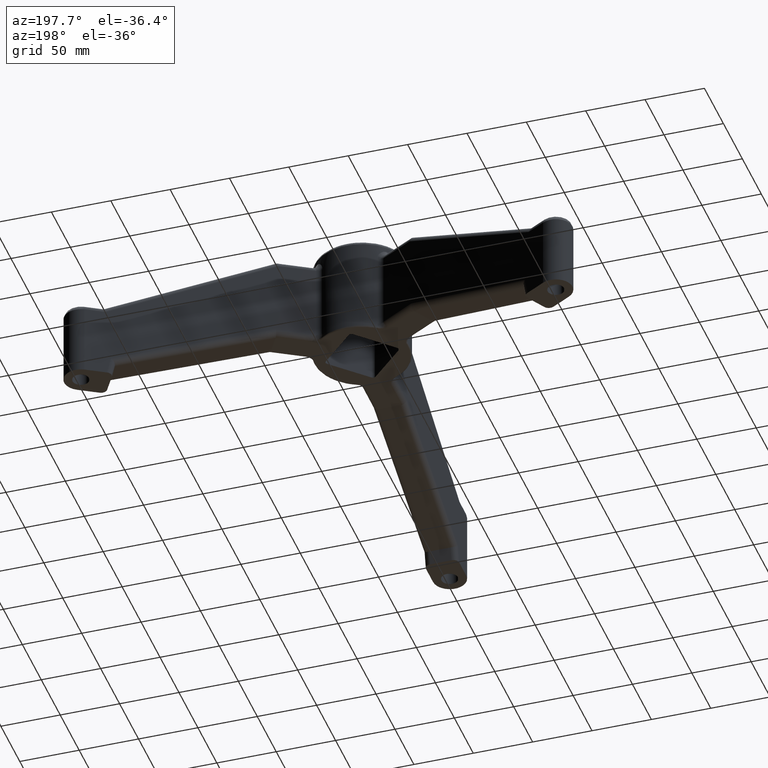
[diagram: clean part render]
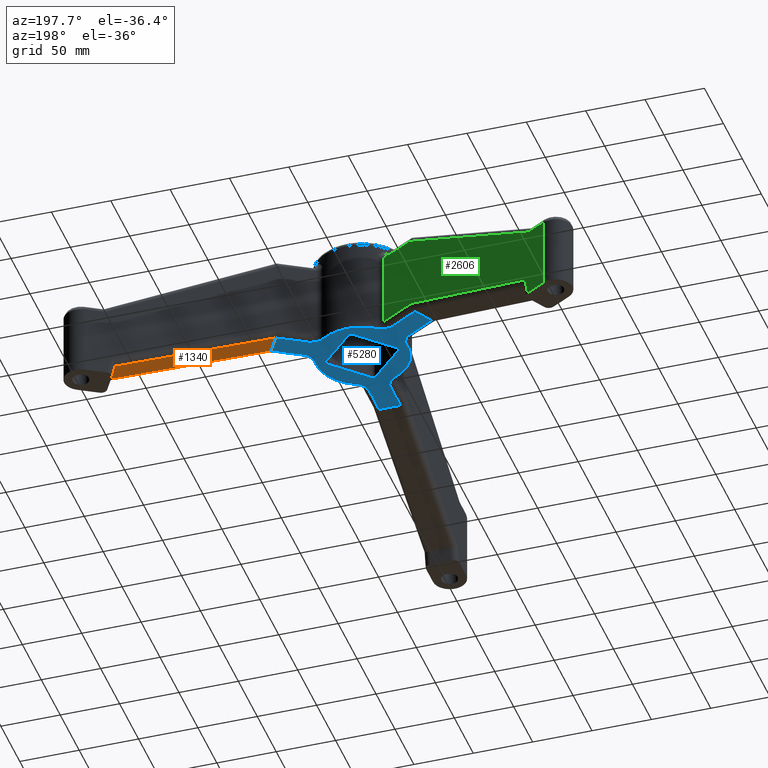
[diagram: same view with three faces highlighted in distinct colors, each labeled with its STEP entity id]
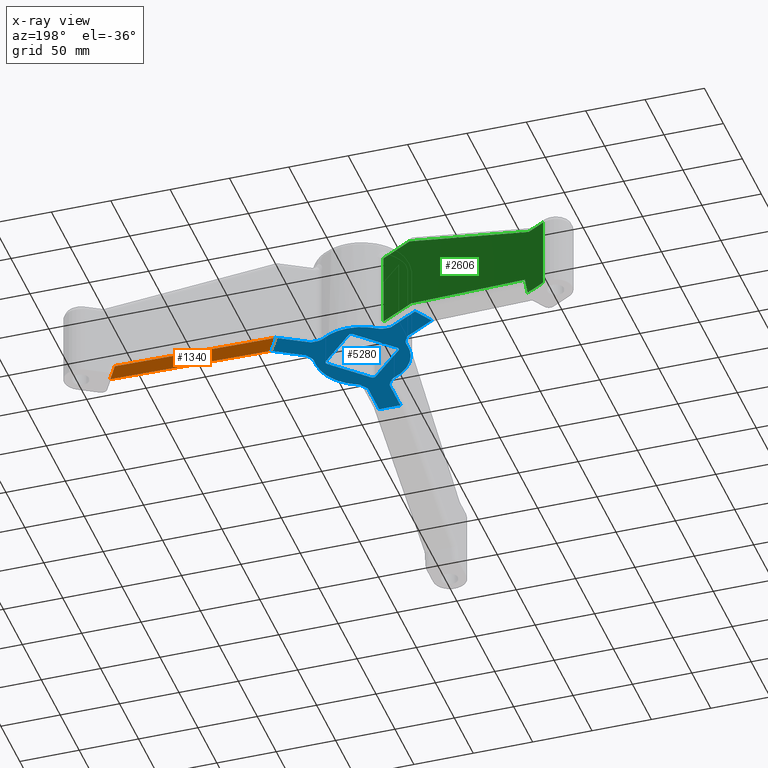
[diagram: x-ray of the same camera — body ghosted, the three highlighted faces saturated]
A machine part, auxiliary view with three faces highlighted in distinct colors.
The next image is the same camera in x-ray (body ghosted, the three faces saturated) — at least one of them is partly hidden behind the body in this view.
Their STEP definitions:

[orange] entity #1340 — the highlighted planar face has unit normal (0.3014, 0.174, 0.9375).
#1107=CARTESIAN_POINT('',(173.032346587699350,110.299184325006410,-134.0));
#1108=VERTEX_POINT('',#1107);
#1109=CARTESIAN_POINT('',(58.716993406259007,44.299184120441559,-85.0));
#1110=VERTEX_POINT('',#1109);
#1111=CARTESIAN_POINT('',(173.032346587699350,110.299184325006410,-134.0));
#1112=DIRECTION('',(-0.811891443584872,-0.468745745443629,0.348008203871933));
#1113=VECTOR('',#1112,140.801278403287260);
#1114=LINE('',#1111,#1113);
#1115=EDGE_CURVE('',#1108,#1110,#1114,.T.);
#1191=CARTESIAN_POINT('',(182.038069255027010,94.700815170782377,-134.0));
#1192=VERTEX_POINT('',#1191);
#1193=CARTESIAN_POINT('',(67.722716073586682,28.700814966217532,-85.0));
#1194=VERTEX_POINT('',#1193);
#1195=CARTESIAN_POINT('',(182.038069255027010,94.700815170782377,-134.0));
#1196=DIRECTION('',(-0.811891443584872,-0.468745745443629,0.348008203871933));
#1197=VECTOR('',#1196,140.801278403287260);
#1198=LINE('',#1195,#1197);
#1199=EDGE_CURVE('',#1192,#1194,#1198,.T.);
#1319=CARTESIAN_POINT('',(9.279279657066688,393.927814971958700,-134.000000000000030));
#1320=DIRECTION('',(0.301383944967112,0.174004102475287,0.937491487981534));
#1321=DIRECTION('',(-0.811891443584872,-0.468745745443630,0.348008203871933));
#1322=AXIS2_PLACEMENT_3D('',#1319,#1320,#1321);
#1323=PLANE('',#1322);
#1324=CARTESIAN_POINT('',(58.716993406259022,44.299184120441566,-85.0));
#1325=DIRECTION('',(0.500000001549735,-0.866025402889699,0.0));
#1326=VECTOR('',#1325,18.011445278829445);
#1327=LINE('',#1324,#1326);
#1328=EDGE_CURVE('',#1110,#1194,#1327,.T.);
#1329=ORIENTED_EDGE('',*,*,#1328,.F.);
#1330=ORIENTED_EDGE('',*,*,#1115,.F.);
#1331=CARTESIAN_POINT('',(173.032346587699350,110.299184325006420,-134.0));
#1332=DIRECTION('',(0.500000001549735,-0.866025402889699,0.0));
#1333=VECTOR('',#1332,18.011445278829445);
#1334=LINE('',#1331,#1333);
#1335=EDGE_CURVE('',#1108,#1192,#1334,.T.);
#1336=ORIENTED_EDGE('',*,*,#1335,.T.);
#1337=ORIENTED_EDGE('',*,*,#1199,.T.);
#1338=EDGE_LOOP('',(#1329,#1330,#1336,#1337));
#1339=FACE_OUTER_BOUND('',#1338,.T.);
#1340=ADVANCED_FACE('',(#1339),#1323,.F.);

[blue] entity #5280 — the highlighted planar face has unit normal (0, 0, 1).
#396=CARTESIAN_POINT('',(9.005722112097075,-72.999999983884464,-85.0));
#397=VERTEX_POINT('',#396);
#480=CARTESIAN_POINT('',(-9.005723166732363,-73.000000016115578,-85.0));
#481=VERTEX_POINT('',#480);
#611=CARTESIAN_POINT('',(9.005722112097146,-72.999999983884493,-85.0));
#612=DIRECTION('',(-1.0,-1.789478E-009,0.0));
#613=VECTOR('',#612,18.011445278829456);
#614=LINE('',#611,#613);
#615=EDGE_CURVE('',#397,#481,#614,.T.);
#1109=CARTESIAN_POINT('',(58.716993406259007,44.299184120441559,-85.0));
#1110=VERTEX_POINT('',#1109);
#1193=CARTESIAN_POINT('',(67.722716073586682,28.700814966217532,-85.0));
#1194=VERTEX_POINT('',#1193);
#1324=CARTESIAN_POINT('',(58.716993406259022,44.299184120441566,-85.0));
#1325=DIRECTION('',(0.500000001549735,-0.866025402889699,0.0));
#1326=VECTOR('',#1325,18.011445278829445);
#1327=LINE('',#1324,#1326);
#1328=EDGE_CURVE('',#1110,#1194,#1327,.T.);
#1435=CARTESIAN_POINT('',(30.052006248369899,1.767766657562847,-85.0));
#1436=VERTEX_POINT('',#1435);
#1443=CARTESIAN_POINT('',(30.052006248369903,-1.767767342437120,-85.0));
#1444=VERTEX_POINT('',#1443);
#1445=CARTESIAN_POINT('',(28.284239242490710,-0.000000342437135,-85.0));
#1446=DIRECTION('',(0.0,-6.123234E-017,-1.0));
#1447=DIRECTION('',(0.707106782362389,0.707106780010706,-4.329780E-017));
#1448=AXIS2_PLACEMENT_3D('',#1445,#1446,#1447);
#1449=CIRCLE('',#1448,2.500000070672806);
#1450=EDGE_CURVE('',#1436,#1444,#1449,.T.);
#1483=CARTESIAN_POINT('',(1.767767002939595,30.052005997060402,-85.0));
#1484=VERTEX_POINT('',#1483);
#1491=CARTESIAN_POINT('',(30.052006248369899,1.767766657562847,-85.0));
#1492=DIRECTION('',(-0.707106780010706,0.707106782362389,0.0));
#1493=VECTOR('',#1492,39.999954808808482);
#1494=LINE('',#1491,#1493);
#1495=EDGE_CURVE('',#1436,#1484,#1494,.T.);
#1515=CARTESIAN_POINT('',(-1.767766999999989,30.052006000000006,-85.0));
#1516=VERTEX_POINT('',#1515);
#1523=CARTESIAN_POINT('',(0.0,28.284239000000017,-85.0));
#1524=DIRECTION('',(0.0,-6.123234E-017,-1.0));
#1525=DIRECTION('',(0.707106782362390,0.707106780010705,-4.329780E-017));
#1526=AXIS2_PLACEMENT_3D('',#1523,#1524,#1525);
#1527=CIRCLE('',#1526,2.500000066515584);
#1528=EDGE_CURVE('',#1516,#1484,#1527,.T.);
#1547=CARTESIAN_POINT('',(-30.053105974941424,1.766667025058570,-85.0));
#1548=VERTEX_POINT('',#1547);
#1555=CARTESIAN_POINT('',(-1.767766999999989,30.052006000000006,-85.0));
#1556=DIRECTION('',(-0.707106781186548,-0.707106781186548,0.0));
#1557=VECTOR('',#1556,40.001509994682479);
#1558=LINE('',#1555,#1557);
#1559=EDGE_CURVE('',#1516,#1548,#1558,.T.);
#1579=CARTESIAN_POINT('',(-30.052005610529257,-1.767767295403496,-85.0));
#1580=VERTEX_POINT('',#1579);
#1587=CARTESIAN_POINT('',(-28.286438654450066,-0.000000295432784,-85.0));
#1588=DIRECTION('',(6.162976E-033,-6.123234E-017,-1.0));
#1589=DIRECTION('',(-0.706666361460322,-0.707546926769122,4.332475E-017));
#1590=AXIS2_PLACEMENT_3D('',#1587,#1588,#1589);
#1591=CIRCLE('',#1590,2.498444884840207);
#1592=EDGE_CURVE('',#1580,#1548,#1591,.T.);
#1611=CARTESIAN_POINT('',(-1.499999657562869,-30.284239342437150,-85.0));
#1612=VERTEX_POINT('',#1611);
#1619=CARTESIAN_POINT('',(-30.052005610529257,-1.767767295403496,-85.0));
#1620=DIRECTION('',(0.707546926769122,-0.706666361460322,0.0));
#1621=VECTOR('',#1620,40.353515608277313);
#1622=LINE('',#1619,#1621);
#1623=EDGE_CURVE('',#1580,#1612,#1622,.T.);
#1643=CARTESIAN_POINT('',(1.767767342437121,-30.052006342437146,-85.0));
#1644=VERTEX_POINT('',#1643);
#1651=CARTESIAN_POINT('',(0.000000397667717,-28.284239403546952,-85.000000000000028));
#1652=DIRECTION('',(0.0,-6.123234E-017,-1.000000000000000));
#1653=DIRECTION('',(0.707106782362390,-0.707106780010705,4.329780E-017));
#1654=AXIS2_PLACEMENT_3D('',#1651,#1652,#1653);
#1655=CIRCLE('',#1654,2.499999984250512);
#1656=EDGE_CURVE('',#1644,#1612,#1655,.T.);
#1668=CARTESIAN_POINT('',(30.052006248369903,-1.767767342437120,-85.0));
#1669=DIRECTION('',(-0.707106780010706,-0.707106782362389,0.0));
#1670=VECTOR('',#1669,39.999954328686478);
#1671=LINE('',#1668,#1670);
#1672=EDGE_CURVE('',#1444,#1644,#1671,.T.);
#2078=CARTESIAN_POINT('',(-67.722715518356111,28.700815863442894,-85.0));
#2079=VERTEX_POINT('',#2078);
#2162=CARTESIAN_POINT('',(-58.716992906854358,44.299185049898036,-85.0));
#2163=VERTEX_POINT('',#2162);
#2293=CARTESIAN_POINT('',(-67.722715518356154,28.700815863442870,-85.0));
#2294=DIRECTION('',(0.499999998450265,0.866025404679179,0.0));
#2295=VECTOR('',#2294,18.011445278829456);
#2296=LINE('',#2293,#2295);
#2297=EDGE_CURVE('',#2079,#2163,#2296,.T.);
#2402=CARTESIAN_POINT('',(-42.685615352370057,14.245639402621022,-84.999999999999986));
#2403=VERTEX_POINT('',#2402);
#2404=CARTESIAN_POINT('',(-42.685615352370057,14.245639402621029,-85.0));
#2405=DIRECTION('',(-0.866025404679178,0.499999998450266,0.0));
#2406=VECTOR('',#2405,28.910353011250461);
#2407=LINE('',#2404,#2406);
#2408=EDGE_CURVE('',#2403,#2079,#2407,.T.);
#2562=CARTESIAN_POINT('',(-33.679892508093928,29.844008454683816,-85.000000000000014));
#2563=VERTEX_POINT('',#2562);
#2576=CARTESIAN_POINT('',(-33.679892508093928,29.844008454683813,-85.0));
#2577=DIRECTION('',(-0.866025404679178,0.499999998450267,0.0));
#2578=VECTOR('',#2577,28.910353280035132);
#2579=LINE('',#2576,#2578);
#2580=EDGE_CURVE('',#2563,#2163,#2579,.T.);
#3014=CARTESIAN_POINT('',(42.685615726560719,14.245638281396618,-85.000000000000014));
#3015=VERTEX_POINT('',#3014);
#3028=CARTESIAN_POINT('',(42.685615726560712,14.245638281396630,-85.0));
#3029=DIRECTION('',(0.866025402889700,0.500000001549733,0.0));
#3030=VECTOR('',#3029,28.910353280035125);
#3031=LINE('',#3028,#3030);
#3032=EDGE_CURVE('',#3015,#1194,#3031,.T.);
#3185=CARTESIAN_POINT('',(33.679893292007414,29.844007570012995,-84.999999999999986));
#3186=VERTEX_POINT('',#3185);
#3187=CARTESIAN_POINT('',(33.679893292007421,29.844007570012987,-85.0));
#3188=DIRECTION('',(0.866025402889699,0.500000001549734,0.0));
#3189=VECTOR('',#3188,28.910353011250454);
#3190=LINE('',#3187,#3189);
#3191=EDGE_CURVE('',#3186,#1110,#3190,.T.);
#3224=CARTESIAN_POINT('',(-9.005723218466805,-44.089646736080446,-85.000000000000014));
#3225=VERTEX_POINT('',#3224);
#3238=CARTESIAN_POINT('',(-9.005723218466796,-44.089646736080446,-85.0));
#3239=DIRECTION('',(1.789478E-009,-1.0,0.0));
#3240=VECTOR('',#3239,28.910353280035132);
#3241=LINE('',#3238,#3240);
#3242=EDGE_CURVE('',#3225,#481,#3241,.T.);
#3366=CARTESIAN_POINT('',(9.005722060362633,-44.089646972634036,-84.999999999999986));
#3367=VERTEX_POINT('',#3366);
#3368=CARTESIAN_POINT('',(9.005722060362626,-44.089646972634036,-85.0));
#3369=DIRECTION('',(1.789478E-009,-1.0,0.0));
#3370=VECTOR('',#3369,28.910353011250457);
#3371=LINE('',#3368,#3370);
#3372=EDGE_CURVE('',#3367,#397,#3371,.T.);
#4879=CARTESIAN_POINT('',(-38.773041670862575,4.201337833304293,-85.0));
#4880=VERTEX_POINT('',#4879);
#4881=CARTESIAN_POINT('',(-15.748056554651839,-35.679107538607063,-85.0));
#4882=VERTEX_POINT('',#4881);
#4883=CARTESIAN_POINT('',(0.0,1.369785E-015,-85.0));
#4884=DIRECTION('',(0.0,6.123234E-017,1.0));
#4885=DIRECTION('',(1.0,0.0,0.0));
#4886=AXIS2_PLACEMENT_3D('',#4883,#4884,#4885);
#4887=CIRCLE('',#4886,39.0);
#4888=EDGE_CURVE('',#4880,#4882,#4887,.T.);
#5022=CARTESIAN_POINT('',(-42.685615352370064,14.245639402621018,-85.0));
#5023=CARTESIAN_POINT('',(-42.381885572398858,13.739980911122165,-85.0));
#5024=CARTESIAN_POINT('',(-41.743994256411213,12.726697870539081,-85.0));
#5025=CARTESIAN_POINT('',(-40.885923063592671,11.367175590025452,-85.0));
#5026=CARTESIAN_POINT('',(-40.132723127478158,10.047168338944493,-85.0));
#5027=CARTESIAN_POINT('',(-39.547748938933125,8.837670996261611,-85.0));
#5028=CARTESIAN_POINT('',(-39.098081105128756,7.592450169753645,-85.0));
#5029=CARTESIAN_POINT('',(-38.814366177673421,6.381564197998319,-85.0));
#5030=CARTESIAN_POINT('',(-38.706552113135814,5.255451218745101,-85.0));
#5031=CARTESIAN_POINT('',(-38.738918881865160,4.516241172087899,-85.0));
#5032=CARTESIAN_POINT('',(-38.773042048893970,4.201340221833105,-85.0));
#5033=B_SPLINE_CURVE_WITH_KNOTS('',3,(#5022,#5023,#5024,#5025,#5026,#5027,#5028,#5029,#5030,#5031,#5032),.UNSPECIFIED.,.F.,.U.,(4,1,1,1,1,1,1,1,4),(0.0,1.769635435449257,3.591908767683444,4.822509646561722,6.327712428086298,7.618144114596468,8.788222012948697,10.051889772720326,11.002772529982440),.UNSPECIFIED.);
#5034=EDGE_CURVE('',#2403,#4880,#5033,.T.);
#5145=CARTESIAN_POINT('',(-9.005723218466798,-44.089646566542754,-85.0));
#5146=CARTESIAN_POINT('',(-9.291771489856501,-43.573779465616695,-85.0));
#5147=CARTESIAN_POINT('',(-9.850354912849980,-42.514707641076363,-85.0));
#5148=CARTESIAN_POINT('',(-10.598700144319551,-41.091834918886278,-85.0));
#5149=CARTESIAN_POINT('',(-11.365260056277137,-39.779540946007430,-85.0));
#5150=CARTESIAN_POINT('',(-12.120228438664839,-38.668189753139266,-85.0));
#5151=CARTESIAN_POINT('',(-12.973787440371538,-37.656155607718048,-85.0));
#5152=CARTESIAN_POINT('',(-13.880587998486192,-36.805008374035737,-85.0));
#5153=CARTESIAN_POINT('',(-14.801923233666386,-36.148582374862329,-85.0));
#5154=CARTESIAN_POINT('',(-15.458281071016231,-35.807007926557411,-85.0));
#5155=CARTESIAN_POINT('',(-15.748054675141574,-35.679109060258703,-85.0));
#5156=B_SPLINE_CURVE_WITH_KNOTS('',3,(#5145,#5146,#5147,#5148,#5149,#5150,#5151,#5152,#5153,#5154,#5155),.UNSPECIFIED.,.F.,.U.,(4,1,1,1,1,1,1,1,4),(0.0,1.769635759567966,3.591909197711268,4.822510167508714,6.327712995274284,7.618144674539042,8.788222544870772,10.051890182000884,11.002772287607320),.UNSPECIFIED.);
#5157=EDGE_CURVE('',#3225,#4882,#5156,.T.);
#5164=CARTESIAN_POINT('',(83.220991376351748,-73.001099883281924,-85.0));
#5165=DIRECTION('',(0.0,0.0,1.0));
#5166=DIRECTION('',(-1.789478E-009,1.0,0.0));
#5167=AXIS2_PLACEMENT_3D('',#5164,#5165,#5166);
#5168=PLANE('',#5167);
#5169=ORIENTED_EDGE('',*,*,#3191,.T.);
#5170=ORIENTED_EDGE('',*,*,#1328,.T.);
#5171=ORIENTED_EDGE('',*,*,#3032,.F.);
#5172=CARTESIAN_POINT('',(38.773041790116508,4.201336732741051,-85.0));
#5173=VERTEX_POINT('',#5172);
#5174=CARTESIAN_POINT('',(42.685615585685795,14.245638200062480,-85.0));
#5175=CARTESIAN_POINT('',(42.381885710233377,13.739979584687033,-85.0));
#5176=CARTESIAN_POINT('',(41.743994318795608,12.726696249583192,-85.0));
#5177=CARTESIAN_POINT('',(40.885923013359850,11.367173908563149,-85.0));
#5178=CARTESIAN_POINT('',(40.132723050966192,10.047166567645915,-85.0));
#5179=CARTESIAN_POINT('',(39.547748874983974,8.837669174743240,-85.0));
#5180=CARTESIAN_POINT('',(39.098081093462696,7.592448324208636,-85.0));
#5181=CARTESIAN_POINT('',(38.814366241960116,6.381562387259520,-85.0));
#5182=CARTESIAN_POINT('',(38.706552264186897,5.255449659527765,-85.0));
#5183=CARTESIAN_POINT('',(38.738919032560517,4.516239864847909,-85.0));
#5184=CARTESIAN_POINT('',(38.773042168150361,4.201339121270455,-85.0));
#5185=B_SPLINE_CURVE_WITH_KNOTS('',3,(#5174,#5175,#5176,#5177,#5178,#5179,#5180,#5181,#5182,#5183,#5184),.UNSPECIFIED.,.F.,.U.,(4,1,1,1,1,1,1,1,4),(0.0,1.769635748637422,3.591909184809428,4.822510152698933,6.327712979450386,7.618144658743441,8.788222529611089,10.051890170600101,11.002772300117419),.UNSPECIFIED.);
#5186=EDGE_CURVE('',#3015,#5173,#5185,.T.);
#5187=ORIENTED_EDGE('',*,*,#5186,.T.);
#5188=CARTESIAN_POINT('',(39.0,-8.182460E-015,-85.0));
#5189=VERTEX_POINT('',#5188);
#5190=CARTESIAN_POINT('',(0.0,1.369785E-015,-85.0));
#5191=DIRECTION('',(0.0,6.123234E-017,1.0));
#5192=DIRECTION('',(1.0,0.0,0.0));
#5193=AXIS2_PLACEMENT_3D('',#5190,#5191,#5192);
#5194=CIRCLE('',#5193,39.0);
#5195=EDGE_CURVE('',#5189,#5173,#5194,.T.);
#5196=ORIENTED_EDGE('',*,*,#5195,.F.);
#5197=CARTESIAN_POINT('',(15.748055541909155,-35.679107985611751,-85.0));
#5198=VERTEX_POINT('',#5197);
#5199=CARTESIAN_POINT('',(0.0,1.369785E-015,-85.0));
#5200=DIRECTION('',(0.0,6.123234E-017,1.0));
#5201=DIRECTION('',(1.0,0.0,0.0));
#5202=AXIS2_PLACEMENT_3D('',#5199,#5200,#5201);
#5203=CIRCLE('',#5202,39.0);
#5204=EDGE_CURVE('',#5198,#5189,#5203,.T.);
#5205=ORIENTED_EDGE('',*,*,#5204,.F.);
#5206=CARTESIAN_POINT('',(9.005722060362629,-44.089646972634036,-85.0));
#5207=CARTESIAN_POINT('',(9.291770269654364,-43.573780021543705,-85.0));
#5208=CARTESIAN_POINT('',(9.850353466029475,-42.514708416753450,-85.0));
#5209=CARTESIAN_POINT('',(10.598698701555946,-41.091835825260119,-85.0));
#5210=CARTESIAN_POINT('',(11.365258546114433,-39.779541920915612,-85.0));
#5211=CARTESIAN_POINT('',(12.120226876415117,-38.668190741735991,-85.0));
#5212=CARTESIAN_POINT('',(12.973785828590266,-37.656156561142637,-85.0));
#5213=CARTESIAN_POINT('',(13.880586377488939,-36.805009240655778,-85.0));
#5214=CARTESIAN_POINT('',(14.801921792784825,-36.148583032254393,-85.0));
#5215=CARTESIAN_POINT('',(15.458279856287291,-35.807008452883821,-85.0));
#5216=CARTESIAN_POINT('',(15.748053662398206,-35.679109507260968,-85.0));
#5217=B_SPLINE_CURVE_WITH_KNOTS('',3,(#5206,#5207,#5208,#5209,#5210,#5211,#5212,#5213,#5214,#5215,#5216),.UNSPECIFIED.,.F.,.U.,(4,1,1,1,1,1,1,1,4),(0.0,1.769635435449233,3.591908767683394,4.822509646561695,6.327712428086339,7.618144114596529,8.788222012948793,10.051889772720418,11.002772529982492),.UNSPECIFIED.);
#5218=EDGE_CURVE('',#3367,#5198,#5217,.T.);
#5219=ORIENTED_EDGE('',*,*,#5218,.F.);
#5220=ORIENTED_EDGE('',*,*,#3372,.T.);
#5221=ORIENTED_EDGE('',*,*,#615,.T.);
#5222=ORIENTED_EDGE('',*,*,#3242,.F.);
#5223=ORIENTED_EDGE('',*,*,#5157,.T.);
#5224=ORIENTED_EDGE('',*,*,#4888,.F.);
#5225=ORIENTED_EDGE('',*,*,#5034,.F.);
#5226=ORIENTED_EDGE('',*,*,#2408,.T.);
#5227=ORIENTED_EDGE('',*,*,#2297,.T.);
#5228=ORIENTED_EDGE('',*,*,#2580,.F.);
#5229=CARTESIAN_POINT('',(-23.024985235464719,31.477770805866033,-85.0));
#5230=VERTEX_POINT('',#5229);
#5231=CARTESIAN_POINT('',(-33.679892361300361,29.844008369932499,-85.0));
#5232=CARTESIAN_POINT('',(-33.090114211256434,29.833799889203622,-85.0));
#5233=CARTESIAN_POINT('',(-31.893639395330695,29.788011411355900,-85.0));
#5234=CARTESIAN_POINT('',(-30.287222855839886,29.724661031522452,-85.0));
#5235=CARTESIAN_POINT('',(-28.767462982125579,29.732374402351166,-85.0));
#5236=CARTESIAN_POINT('',(-27.427520425385367,29.830520604107246,-85.0));
#5237=CARTESIAN_POINT('',(-26.124293645098206,30.063707310487253,-85.0));
#5238=CARTESIAN_POINT('',(-24.933778239298604,30.423446013123893,-85.0));
#5239=CARTESIAN_POINT('',(-23.904629030668445,30.893132732608791,-85.0));
#5240=CARTESIAN_POINT('',(-23.280637962434170,31.290768069594876,-85.0));
#5241=CARTESIAN_POINT('',(-23.024987493008780,31.477769938988249,-85.0));
#5242=B_SPLINE_CURVE_WITH_KNOTS('',3,(#5231,#5232,#5233,#5234,#5235,#5236,#5237,#5238,#5239,#5240,#5241),.UNSPECIFIED.,.F.,.U.,(4,1,1,1,1,1,1,1,4),(0.0,1.769635759512212,3.591909197645468,4.822510167433124,6.327712995193438,7.618144674458317,8.788222544792774,10.051890181942596,11.002772287671172),.UNSPECIFIED.);
#5243=EDGE_CURVE('',#2563,#5230,#5242,.T.);
#5244=ORIENTED_EDGE('',*,*,#5243,.T.);
#5245=CARTESIAN_POINT('',(23.024988386495803,31.477769285427868,-85.0));
#5246=VERTEX_POINT('',#5245);
#5247=CARTESIAN_POINT('',(0.0,1.369785E-015,-85.0));
#5248=DIRECTION('',(0.0,6.123234E-017,1.0));
#5249=DIRECTION('',(1.0,0.0,0.0));
#5250=AXIS2_PLACEMENT_3D('',#5247,#5248,#5249);
#5251=CIRCLE('',#5250,39.0);
#5252=EDGE_CURVE('',#5246,#5230,#5251,.T.);
#5253=ORIENTED_EDGE('',*,*,#5252,.F.);
#5254=CARTESIAN_POINT('',(33.679893292007428,29.844007570012995,-85.0));
#5255=CARTESIAN_POINT('',(33.090115302744529,29.833799110421474,-85.0));
#5256=CARTESIAN_POINT('',(31.893640790381895,29.788010546214284,-85.0));
#5257=CARTESIAN_POINT('',(30.287224362036831,29.724660235234595,-85.0));
#5258=CARTESIAN_POINT('',(28.767464581363868,29.732373581971117,-85.0));
#5259=CARTESIAN_POINT('',(27.427522062518179,29.830519745474330,-85.0));
#5260=CARTESIAN_POINT('',(26.124295276538668,30.063706391388994,-85.0));
#5261=CARTESIAN_POINT('',(24.933779800184602,30.423445042657455,-85.0));
#5262=CARTESIAN_POINT('',(23.904630320351124,30.893131813509267,-85.0));
#5263=CARTESIAN_POINT('',(23.280639025577933,31.290767280795926,-85.0));
#5264=CARTESIAN_POINT('',(23.024988386495799,31.477769285427872,-85.0));
#5265=B_SPLINE_CURVE_WITH_KNOTS('',3,(#5254,#5255,#5256,#5257,#5258,#5259,#5260,#5261,#5262,#5263,#5264),.UNSPECIFIED.,.F.,.U.,(4,1,1,1,1,1,1,1,4),(0.0,1.769635435449165,3.591908767683345,4.822509646561580,6.327712428086137,7.618144114596321,8.788222012948559,10.051889772720235,11.002772529982460),.UNSPECIFIED.);
#5266=EDGE_CURVE('',#3186,#5246,#5265,.T.);
#5267=ORIENTED_EDGE('',*,*,#5266,.F.);
#5268=EDGE_LOOP('',(#5169,#5170,#5171,#5187,#5196,#5205,#5219,#5220,#5221,#5222,#5223,#5224,#5225,#5226,#5227,#5228,#5244,#5253,#5267));
#5269=FACE_OUTER_BOUND('',#5268,.T.);
#5270=ORIENTED_EDGE('',*,*,#1495,.T.);
#5271=ORIENTED_EDGE('',*,*,#1528,.F.);
#5272=ORIENTED_EDGE('',*,*,#1559,.T.);
#5273=ORIENTED_EDGE('',*,*,#1592,.F.);
#5274=ORIENTED_EDGE('',*,*,#1623,.T.);
#5275=ORIENTED_EDGE('',*,*,#1656,.F.);
#5276=ORIENTED_EDGE('',*,*,#1672,.F.);
#5277=ORIENTED_EDGE('',*,*,#1450,.F.);
#5278=EDGE_LOOP('',(#5270,#5271,#5272,#5273,#5274,#5275,#5276,#5277));
#5279=FACE_BOUND('',#5278,.T.);
#5280=ADVANCED_FACE('',(#5269,#5279),#5168,.F.);

[green] entity #2606 — the highlighted planar face has unit normal (-0.5, -0.866, 0).
#1773=CARTESIAN_POINT('',(-178.209276110440730,119.061589324397810,-85.000000000000014));
#1774=VERTEX_POINT('',#1773);
#1789=CARTESIAN_POINT('',(-193.044050798913990,127.626450448759970,-85.000000000000014));
#1790=VERTEX_POINT('',#1789);
#1791=CARTESIAN_POINT('',(-193.044050798913990,127.626450448759970,-85.000000000000014));
#1792=DIRECTION('',(0.866025404679178,-0.499999998450266,0.0));
#1793=VECTOR('',#1792,17.129722301817296);
#1794=LINE('',#1791,#1793);
#1795=EDGE_CURVE('',#1790,#1774,#1794,.T.);
#1820=CARTESIAN_POINT('',(-55.233668645997383,48.061589544459963,-17.000000000000004));
#1821=VERTEX_POINT('',#1820);
#1836=CARTESIAN_POINT('',(-55.233668645997383,48.061589544459963,-17.000000000000004));
#1837=DIRECTION('',(-0.781084883309748,0.450959565775184,-0.431904937574063));
#1838=VECTOR('',#1837,157.442052832145320);
#1839=LINE('',#1836,#1838);
#1840=EDGE_CURVE('',#1821,#1774,#1839,.T.);
#1897=CARTESIAN_POINT('',(-193.044050798913990,127.626450448759970,-145.0));
#1898=VERTEX_POINT('',#1897);
#1921=CARTESIAN_POINT('',(-193.044050798913990,127.626450448759980,-85.0));
#1922=DIRECTION('',(0.0,0.0,-1.0));
#1923=VECTOR('',#1922,60.0);
#1924=LINE('',#1921,#1923);
#1925=EDGE_CURVE('',#1790,#1898,#1924,.T.);
#2170=CARTESIAN_POINT('',(-174.235589108152200,116.767380073432290,-130.253971914347830));
#2171=VERTEX_POINT('',#2170);
#2184=CARTESIAN_POINT('',(-56.994761352450070,49.078356888396378,-80.0));
#2185=VERTEX_POINT('',#2184);
#2186=CARTESIAN_POINT('',(-174.235589108152200,116.767380073432290,-130.253971914347830));
#2187=DIRECTION('',(0.811891445262493,-0.468745742537905,0.348008203871933));
#2188=VECTOR('',#2187,144.404561028225800);
#2189=LINE('',#2186,#2188);
#2190=EDGE_CURVE('',#2171,#2185,#2189,.T.);
#2220=CARTESIAN_POINT('',(-177.137960685490300,118.443065077971780,-145.0));
#2221=VERTEX_POINT('',#2220);
#2229=CARTESIAN_POINT('',(-177.137960685490300,118.443065077971780,-145.0));
#2230=DIRECTION('',(0.191929505921085,-0.110810551451032,0.975132855791459));
#2231=VECTOR('',#2230,15.122070800992210);
#2232=LINE('',#2229,#2231);
#2233=EDGE_CURVE('',#2221,#2171,#2232,.T.);
#2244=CARTESIAN_POINT('',(-177.137960685490330,118.443065077971800,-145.0));
#2245=DIRECTION('',(-0.866025404679178,0.499999998450267,0.0));
#2246=VECTOR('',#2245,18.366770798503392);
#2247=LINE('',#2244,#2246);
#2248=EDGE_CURVE('',#2221,#1898,#2247,.T.);
#2524=CARTESIAN_POINT('',(-28.321872824062243,32.524057046500246,-17.000000000000004));
#2525=VERTEX_POINT('',#2524);
#2538=CARTESIAN_POINT('',(-28.321872824062243,32.524057046500246,-17.000000000000004));
#2539=DIRECTION('',(-0.866025404679178,0.499999998450266,0.0));
#2540=VECTOR('',#2539,31.075065092235594);
#2541=LINE('',#2538,#2540);
#2542=EDGE_CURVE('',#2525,#1821,#2541,.T.);
#2554=CARTESIAN_POINT('',(-28.321872824062243,32.524057046500239,-80.0));
#2555=VERTEX_POINT('',#2554);
#2556=CARTESIAN_POINT('',(-28.321872824062243,32.524057046500246,-80.0));
#2557=DIRECTION('',(-0.866025404679178,0.499999998450266,0.0));
#2558=VECTOR('',#2557,33.108599786411325);
#2559=LINE('',#2556,#2558);
#2560=EDGE_CURVE('',#2555,#2185,#2559,.T.);
#2585=CARTESIAN_POINT('',(-25.445247537715893,30.863236669934043,-12.000000000000002));
#2586=DIRECTION('',(-0.499999998450266,-0.866025404679178,5.302876E-017));
#2587=DIRECTION('',(-0.866025404679178,0.499999998450266,-3.061617E-017));
#2588=AXIS2_PLACEMENT_3D('',#2585,#2586,#2587);
#2589=PLANE('',#2588);
#2590=ORIENTED_EDGE('',*,*,#2542,.F.);
#2591=CARTESIAN_POINT('',(-28.321872824062243,32.524057046500246,-17.000000000000004));
#2592=DIRECTION('',(0.0,0.0,-1.0));
#2593=VECTOR('',#2592,63.0);
#2594=LINE('',#2591,#2593);
#2595=EDGE_CURVE('',#2525,#2555,#2594,.T.);
#2596=ORIENTED_EDGE('',*,*,#2595,.T.);
#2597=ORIENTED_EDGE('',*,*,#2560,.T.);
#2598=ORIENTED_EDGE('',*,*,#2190,.F.);
#2599=ORIENTED_EDGE('',*,*,#2233,.F.);
#2600=ORIENTED_EDGE('',*,*,#2248,.T.);
#2601=ORIENTED_EDGE('',*,*,#1925,.F.);
#2602=ORIENTED_EDGE('',*,*,#1795,.T.);
#2603=ORIENTED_EDGE('',*,*,#1840,.F.);
#2604=EDGE_LOOP('',(#2590,#2596,#2597,#2598,#2599,#2600,#2601,#2602,#2603));
#2605=FACE_OUTER_BOUND('',#2604,.T.);
#2606=ADVANCED_FACE('',(#2605),#2589,.F.);